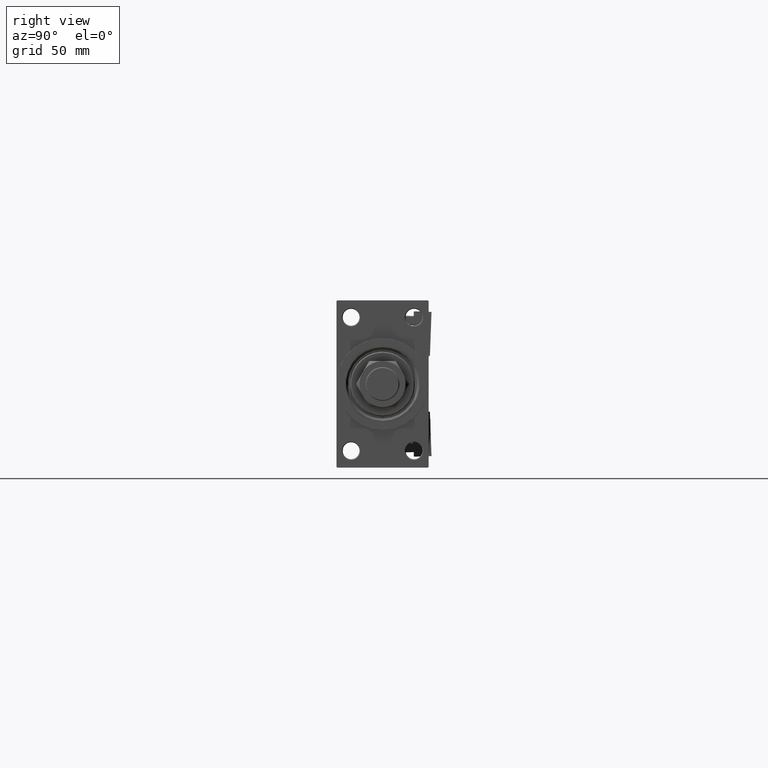
[diagram: clean part render]
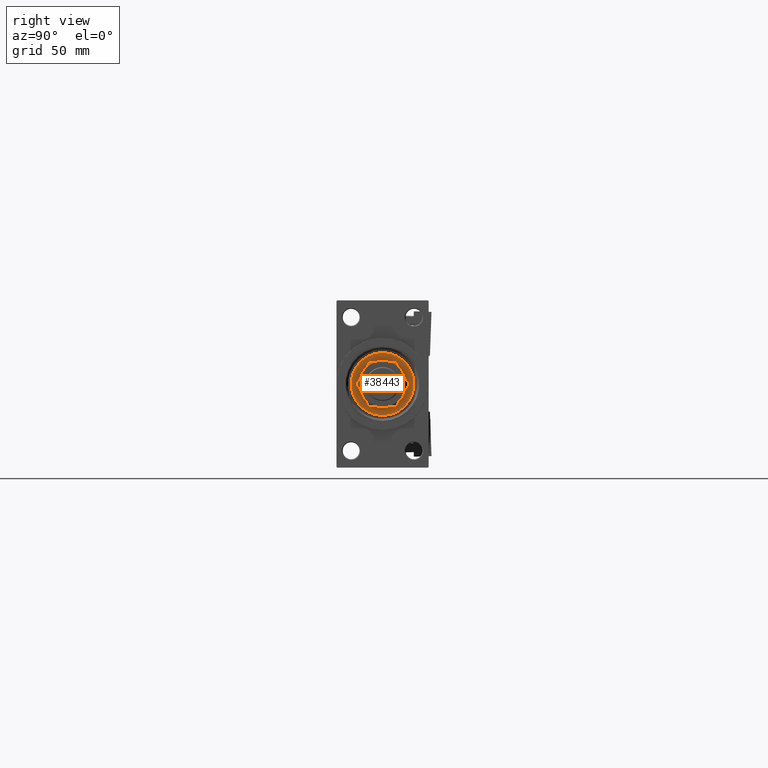
[diagram: same view with one face highlighted and labeled with its STEP entity id]
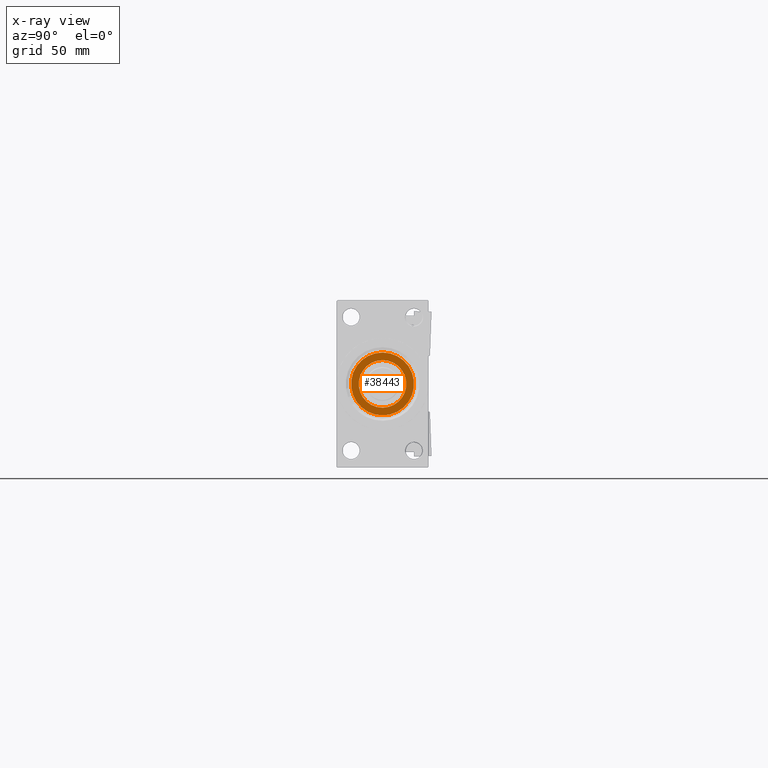
[diagram: x-ray of the same camera — body ghosted, the highlighted face saturated]
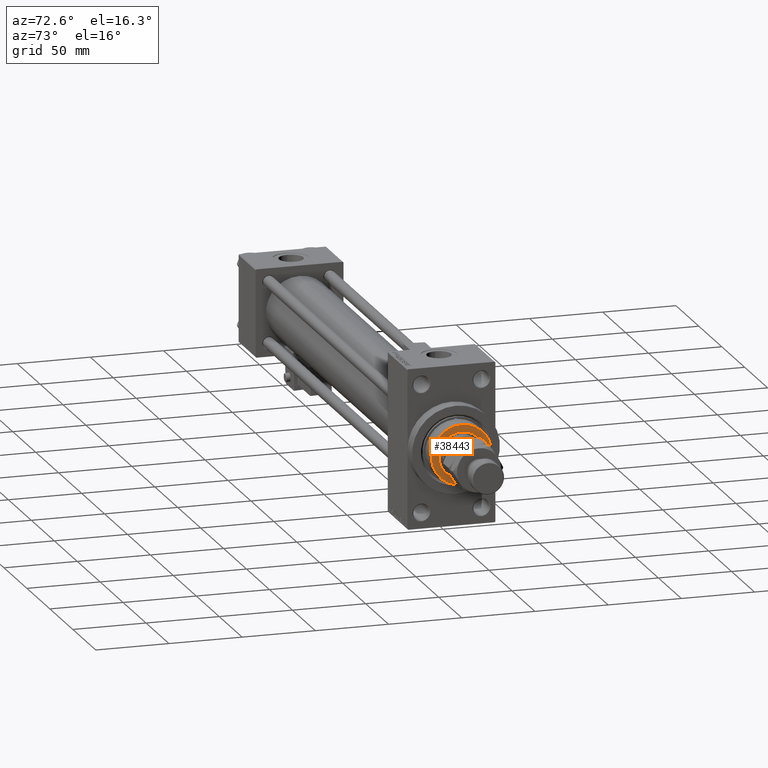
[diagram: same view with one face highlighted and labeled with its STEP entity id]
A machine part, right view. The second image highlights one B-rep face of the part: STEP entity #38443.
The next image is the same camera in x-ray: the body ghosted, the highlighted face saturated — about 0% of this face is hidden behind the body in this view.
A second angle (auxiliary view) of the same face is appended — the face is thin or edge-on in the first view.
In plain terms, the highlighted planar face has unit normal (1, -0, -0).
Its self-contained STEP definition (entity closure, byte-faithful):
#453 = CIRCLE ( 'NONE', #36128, 20.50000000000000355 ) ;
#2131 = DIRECTION ( 'NONE',  ( 0.000000000000000000, 0.000000000000000000, 1.000000000000000000 ) ) ;
#3403 = DIRECTION ( 'NONE',  ( 0.000000000000000000, 0.000000000000000000, 1.000000000000000000 ) ) ;
#3596 = CIRCLE ( 'NONE', #45045, 20.50000000000000355 ) ;
#3638 = DIRECTION ( 'NONE',  ( 1.000000000000000000, 0.000000000000000000, -0.000000000000000000 ) ) ;
#7638 = VERTEX_POINT ( 'NONE', #29889 ) ;
#9074 = AXIS2_PLACEMENT_3D ( 'NONE', #21129, #2131, #37488 ) ;
#11416 = PLANE ( 'NONE',  #42973 ) ;
#12768 = ORIENTED_EDGE ( 'NONE', *, *, #19112, .T. ) ;
#13139 = VERTEX_POINT ( 'NONE', #21887 ) ;
#16020 = VERTEX_POINT ( 'NONE', #43751 ) ;
#17505 = DIRECTION ( 'NONE',  ( 0.000000000000000000, 0.000000000000000000, 1.000000000000000000 ) ) ;
#18950 = FACE_OUTER_BOUND ( 'NONE', #49323, .T. ) ;
#19112 = EDGE_CURVE ( 'NONE', #47411, #13139, #453, .T. ) ;
#20410 = DIRECTION ( 'NONE',  ( 0.000000000000000000, 0.000000000000000000, 1.000000000000000000 ) ) ;
#20673 = CARTESIAN_POINT ( 'NONE',  ( 0.000000000000000000, 0.000000000000000000, 55.26000000000000512 ) ) ;
#21129 = CARTESIAN_POINT ( 'NONE',  ( 0.000000000000000000, 0.000000000000000000, 55.26000000000000512 ) ) ;
#21887 = CARTESIAN_POINT ( 'NONE',  ( -20.50000000000000355, 0.000000000000000000, 55.26000000000000512 ) ) ;
#23442 = DIRECTION ( 'NONE',  ( 0.000000000000000000, 0.000000000000000000, 1.000000000000000000 ) ) ;
#24945 = EDGE_CURVE ( 'NONE', #16020, #7638, #33425, .T. ) ;
#27322 = CARTESIAN_POINT ( 'NONE',  ( 0.000000000000000000, 0.000000000000000000, 55.26000000000000512 ) ) ;
#27754 = ORIENTED_EDGE ( 'NONE', *, *, #28741, .T. ) ;
#28741 = EDGE_CURVE ( 'NONE', #13139, #47411, #3596, .T. ) ;
#29789 = CIRCLE ( 'NONE', #9074, 15.50000000000000000 ) ;
#29889 = CARTESIAN_POINT ( 'NONE',  ( 15.50000000000000000, 0.000000000000000000, 55.26000000000000512 ) ) ;
#31515 = CARTESIAN_POINT ( 'NONE',  ( 20.50000000000000355, 2.541142108230758269E-15, 55.26000000000000512 ) ) ;
#32245 = DIRECTION ( 'NONE',  ( 1.000000000000000000, 0.000000000000000000, 0.000000000000000000 ) ) ;
#33340 = DIRECTION ( 'NONE',  ( 1.000000000000000000, 0.000000000000000000, 0.000000000000000000 ) ) ;
#33425 = CIRCLE ( 'NONE', #40083, 15.50000000000000000 ) ;
#36128 = AXIS2_PLACEMENT_3D ( 'NONE', #37506, #17505, #33340 ) ;
#37488 = DIRECTION ( 'NONE',  ( 1.000000000000000000, 0.000000000000000000, 0.000000000000000000 ) ) ;
#37506 = CARTESIAN_POINT ( 'NONE',  ( 0.000000000000000000, 0.000000000000000000, 55.26000000000000512 ) ) ;
#38443 = ADVANCED_FACE ( 'NONE', ( #42866, #18950 ), #11416, .T. ) ;
#40083 = AXIS2_PLACEMENT_3D ( 'NONE', #42635, #3403, #43407 ) ;
#42635 = CARTESIAN_POINT ( 'NONE',  ( 0.000000000000000000, 0.000000000000000000, 55.26000000000000512 ) ) ;
#42866 = FACE_BOUND ( 'NONE', #43189, .T. ) ;
#42973 = AXIS2_PLACEMENT_3D ( 'NONE', #20673, #20410, #3638 ) ;
#43189 = EDGE_LOOP ( 'NONE', ( #46370, #46522 ) ) ;
#43407 = DIRECTION ( 'NONE',  ( 1.000000000000000000, 0.000000000000000000, 0.000000000000000000 ) ) ;
#43751 = CARTESIAN_POINT ( 'NONE',  ( -15.50000000000000000, 1.898202538678397557E-15, 55.26000000000000512 ) ) ;
#45045 = AXIS2_PLACEMENT_3D ( 'NONE', #27322, #23442, #32245 ) ;
#46370 = ORIENTED_EDGE ( 'NONE', *, *, #50122, .F. ) ;
#46522 = ORIENTED_EDGE ( 'NONE', *, *, #24945, .F. ) ;
#47411 = VERTEX_POINT ( 'NONE', #31515 ) ;
#49323 = EDGE_LOOP ( 'NONE', ( #27754, #12768 ) ) ;
#50122 = EDGE_CURVE ( 'NONE', #7638, #16020, #29789, .T. ) ;